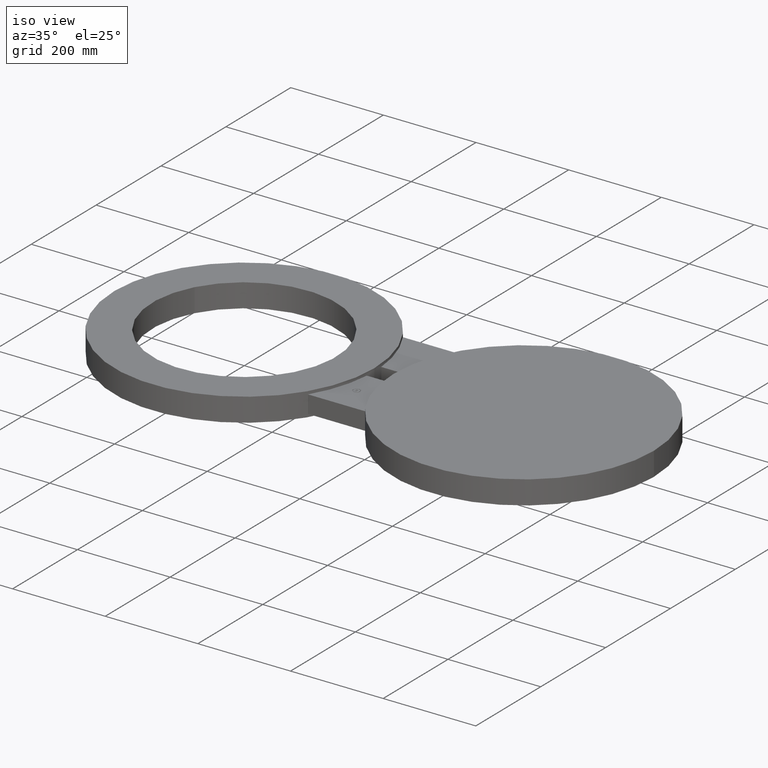
[diagram: clean part render]
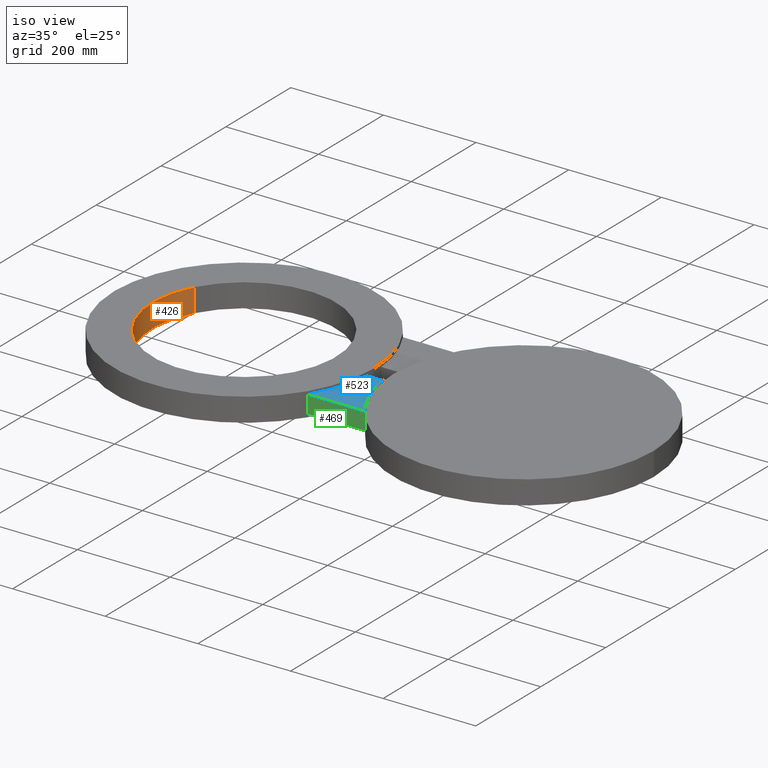
[diagram: same view with three faces highlighted in distinct colors, each labeled with its STEP entity id]
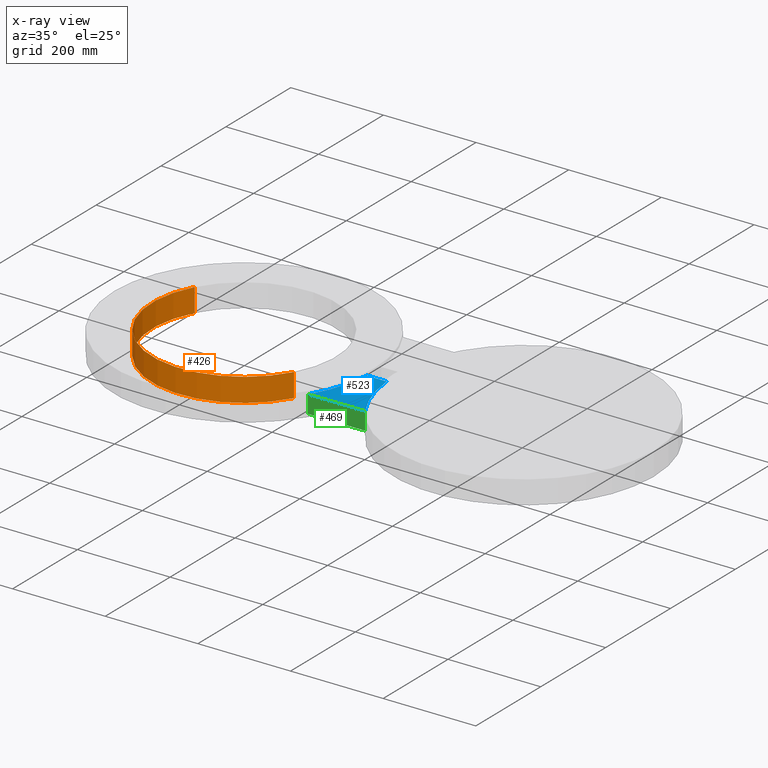
[diagram: x-ray of the same camera — body ghosted, the three highlighted faces saturated]
A machine part, iso view with three faces highlighted in distinct colors.
The next image is the same camera in x-ray (body ghosted, the three faces saturated) — at least one of them is partly hidden behind the body in this view.
Their STEP definitions:

[orange] entity #426 — the highlighted cylindrical surface (partial cylindrical patch) has radius 198.374 mm, axis along (0, -0, -1).
#208=AXIS2_PLACEMENT_3D('Circle Axis2P3D',#206,#207,$) ;
#399=AXIS2_PLACEMENT_3D('Cylinder Axis2P3D',#396,#397,#398) ;
#417=AXIS2_PLACEMENT_3D('Circle Axis2P3D',#415,#416,$) ;
#201=CARTESIAN_POINT('Vertex',(6.85391980839,-3.74431345651,-1.)) ;
#203=CARTESIAN_POINT('Vertex',(-6.85391980839,3.74431345651,-1.)) ;
#206=CARTESIAN_POINT('Axis2P3D Location',(0.,1.1189649382E-015,-1.)) ;
#396=CARTESIAN_POINT('Axis2P3D Location',(8.52336574023E-017,-6.99353086378E-017,0.99606299213)) ;
#401=CARTESIAN_POINT('Line Origine',(6.85391980839,-3.74431345651,0.)) ;
#405=CARTESIAN_POINT('Vertex',(6.85391980839,-3.74431345651,1.)) ;
#408=CARTESIAN_POINT('Line Origine',(-6.85391980839,3.74431345651,0.)) ;
#412=CARTESIAN_POINT('Vertex',(-6.85391980839,3.74431345651,1.)) ;
#415=CARTESIAN_POINT('Axis2P3D Location',(8.52336574023E-017,-6.99353086378E-017,1.)) ;
#207=DIRECTION('Axis2P3D Direction',(0.,0.,0.0393700787402)) ;
#397=DIRECTION('Axis2P3D Direction',(0.,-0.,-0.0393700787402)) ;
#398=DIRECTION('Axis2P3D XDirection',(-0.0345504945626,0.0188750212049,0.)) ;
#402=DIRECTION('Vector Direction',(0.,0.,-0.0393700787402)) ;
#409=DIRECTION('Vector Direction',(0.,0.,-0.0393700787402)) ;
#416=DIRECTION('Axis2P3D Direction',(0.,-0.,-0.0393700787402)) ;
#403=VECTOR('Line Direction',#402,0.0393700787402) ;
#410=VECTOR('Line Direction',#409,0.0393700787402) ;
#421=ORIENTED_EDGE('',*,*,#407,.F.) ;
#422=ORIENTED_EDGE('',*,*,#210,.F.) ;
#423=ORIENTED_EDGE('',*,*,#414,.T.) ;
#424=ORIENTED_EDGE('',*,*,#419,.T.) ;
#426=ADVANCED_FACE('PartBody',(#425),#400,.F.) ;
#209=CIRCLE('generated circle',#208,7.81000000003) ;
#418=CIRCLE('generated circle',#417,7.81000000003) ;
#400=CYLINDRICAL_SURFACE('generated cylinder',#399,7.81000000003) ;
#210=EDGE_CURVE('',#204,#202,#209,.T.) ;
#407=EDGE_CURVE('',#202,#406,#404,.F.) ;
#414=EDGE_CURVE('',#204,#413,#411,.F.) ;
#419=EDGE_CURVE('',#413,#406,#418,.F.) ;
#420=EDGE_LOOP('',(#421,#422,#423,#424)) ;
#425=FACE_OUTER_BOUND('',#420,.T.) ;
#404=LINE('Line',#401,#403) ;
#411=LINE('Line',#408,#410) ;
#202=VERTEX_POINT('',#201) ;
#204=VERTEX_POINT('',#203) ;
#406=VERTEX_POINT('',#405) ;
#413=VERTEX_POINT('',#412) ;

[blue] entity #523 — the highlighted planar face has unit normal (0, 0, 1).
#76=AXIS2_PLACEMENT_3D('Circle Axis2P3D',#74,#75,$) ;
#173=AXIS2_PLACEMENT_3D('Circle Axis2P3D',#171,#172,$) ;
#340=AXIS2_PLACEMENT_3D('Plane Axis2P3D',#337,#338,#339) ;
#507=AXIS2_PLACEMENT_3D('Circle Axis2P3D',#505,#506,$) ;
#516=AXIS2_PLACEMENT_3D('Circle Axis2P3D',#514,#515,$) ;
#74=CARTESIAN_POINT('Axis2P3D Location',(23.7500000001,2.90853614799E-015,0.750000000003)) ;
#78=CARTESIAN_POINT('Vertex',(12.7246666718,-0.875000000003,0.750000000003)) ;
#80=CARTESIAN_POINT('Vertex',(14.3052355774,-5.75500000002,0.750000000003)) ;
#154=CARTESIAN_POINT('Vertex',(11.0253333283,-0.875000000003,0.750000000003)) ;
#168=CARTESIAN_POINT('Vertex',(9.44476442272,-5.75500000002,0.750000000003)) ;
#171=CARTESIAN_POINT('Axis2P3D Location',(0.,0.,0.750000000003)) ;
#337=CARTESIAN_POINT('Axis2P3D Location',(0.,0.,0.750000000003)) ;
#458=CARTESIAN_POINT('Line Origine',(11.875,-5.75500000002,0.750000000003)) ;
#487=CARTESIAN_POINT('Line Origine',(11.875,-0.875000000004,0.750000000003)) ;
#505=CARTESIAN_POINT('Axis2P3D Location',(11.875,-3.31500000001,0.750000000003)) ;
#509=CARTESIAN_POINT('Vertex',(11.875,-3.00250000314,0.750000000003)) ;
#511=CARTESIAN_POINT('Vertex',(11.875,-3.62749999689,0.750000000003)) ;
#514=CARTESIAN_POINT('Axis2P3D Location',(11.875,-3.31500000001,0.750000000003)) ;
#75=DIRECTION('Axis2P3D Direction',(0.,0.,0.0393700787402)) ;
#172=DIRECTION('Axis2P3D Direction',(0.,0.,0.0393700787402)) ;
#338=DIRECTION('Axis2P3D Direction',(0.,0.,0.0393700787402)) ;
#339=DIRECTION('Axis2P3D XDirection',(0.0393700787402,0.,0.)) ;
#459=DIRECTION('Vector Direction',(-0.0393700787402,0.,0.)) ;
#488=DIRECTION('Vector Direction',(0.0393700787402,0.,0.)) ;
#506=DIRECTION('Axis2P3D Direction',(0.,0.,0.0393700787402)) ;
#515=DIRECTION('Axis2P3D Direction',(0.,0.,0.0393700787402)) ;
#460=VECTOR('Line Direction',#459,0.0393700787402) ;
#489=VECTOR('Line Direction',#488,0.0393700787402) ;
#500=ORIENTED_EDGE('',*,*,#82,.F.) ;
#501=ORIENTED_EDGE('',*,*,#491,.T.) ;
#502=ORIENTED_EDGE('',*,*,#175,.F.) ;
#503=ORIENTED_EDGE('',*,*,#462,.T.) ;
#520=ORIENTED_EDGE('',*,*,#513,.F.) ;
#521=ORIENTED_EDGE('',*,*,#518,.F.) ;
#522=FACE_BOUND('',#519,.T.) ;
#523=ADVANCED_FACE('PartBody',(#504,#522),#341,.T.) ;
#77=CIRCLE('generated circle',#76,11.06) ;
#174=CIRCLE('generated circle',#173,11.06) ;
#508=CIRCLE('generated circle',#507,0.312499996876) ;
#517=CIRCLE('generated circle',#516,0.312499996876) ;
#82=EDGE_CURVE('',#79,#81,#77,.T.) ;
#175=EDGE_CURVE('',#169,#155,#174,.T.) ;
#462=EDGE_CURVE('',#169,#81,#461,.F.) ;
#491=EDGE_CURVE('',#79,#155,#490,.F.) ;
#513=EDGE_CURVE('',#510,#512,#508,.T.) ;
#518=EDGE_CURVE('',#512,#510,#517,.T.) ;
#499=EDGE_LOOP('',(#500,#501,#502,#503)) ;
#519=EDGE_LOOP('',(#520,#521)) ;
#504=FACE_OUTER_BOUND('',#499,.T.) ;
#461=LINE('Line',#458,#460) ;
#490=LINE('Line',#487,#489) ;
#341=PLANE('',#340) ;
#79=VERTEX_POINT('',#78) ;
#81=VERTEX_POINT('',#80) ;
#155=VERTEX_POINT('',#154) ;
#169=VERTEX_POINT('',#168) ;
#510=VERTEX_POINT('',#509) ;
#512=VERTEX_POINT('',#511) ;

[green] entity #469 — the highlighted planar face has unit normal (0, 1, -0).
#451=AXIS2_PLACEMENT_3D('Plane Axis2P3D',#448,#449,#450) ;
#80=CARTESIAN_POINT('Vertex',(14.3052355774,-5.75500000002,0.750000000003)) ;
#83=CARTESIAN_POINT('Line Origine',(14.3052355774,-5.75500000002,0.)) ;
#87=CARTESIAN_POINT('Vertex',(14.3052355774,-5.75500000002,-0.750000000003)) ;
#161=CARTESIAN_POINT('Vertex',(9.44476442272,-5.75500000002,-0.750000000003)) ;
#164=CARTESIAN_POINT('Line Origine',(9.44476442272,-5.75500000002,0.)) ;
#168=CARTESIAN_POINT('Vertex',(9.44476442272,-5.75500000002,0.750000000003)) ;
#448=CARTESIAN_POINT('Axis2P3D Location',(14.3052355774,-5.75500000002,0.)) ;
#453=CARTESIAN_POINT('Line Origine',(11.875,-5.75500000002,-0.750000000003)) ;
#458=CARTESIAN_POINT('Line Origine',(11.875,-5.75500000002,0.750000000003)) ;
#84=DIRECTION('Vector Direction',(0.,0.,0.0393700787402)) ;
#165=DIRECTION('Vector Direction',(0.,0.,0.0393700787402)) ;
#449=DIRECTION('Axis2P3D Direction',(0.,0.0393700787402,-0.)) ;
#450=DIRECTION('Axis2P3D XDirection',(-0.0393700787402,0.,0.)) ;
#454=DIRECTION('Vector Direction',(-0.0393700787402,0.,0.)) ;
#459=DIRECTION('Vector Direction',(-0.0393700787402,0.,0.)) ;
#85=VECTOR('Line Direction',#84,0.0393700787402) ;
#166=VECTOR('Line Direction',#165,0.0393700787402) ;
#455=VECTOR('Line Direction',#454,0.0393700787402) ;
#460=VECTOR('Line Direction',#459,0.0393700787402) ;
#464=ORIENTED_EDGE('',*,*,#170,.F.) ;
#465=ORIENTED_EDGE('',*,*,#457,.T.) ;
#466=ORIENTED_EDGE('',*,*,#89,.T.) ;
#467=ORIENTED_EDGE('',*,*,#462,.F.) ;
#469=ADVANCED_FACE('PartBody',(#468),#452,.F.) ;
#89=EDGE_CURVE('',#88,#81,#86,.T.) ;
#170=EDGE_CURVE('',#162,#169,#167,.T.) ;
#457=EDGE_CURVE('',#162,#88,#456,.F.) ;
#462=EDGE_CURVE('',#169,#81,#461,.F.) ;
#463=EDGE_LOOP('',(#464,#465,#466,#467)) ;
#468=FACE_OUTER_BOUND('',#463,.T.) ;
#86=LINE('Line',#83,#85) ;
#167=LINE('Line',#164,#166) ;
#456=LINE('Line',#453,#455) ;
#461=LINE('Line',#458,#460) ;
#452=PLANE('',#451) ;
#81=VERTEX_POINT('',#80) ;
#88=VERTEX_POINT('',#87) ;
#162=VERTEX_POINT('',#161) ;
#169=VERTEX_POINT('',#168) ;